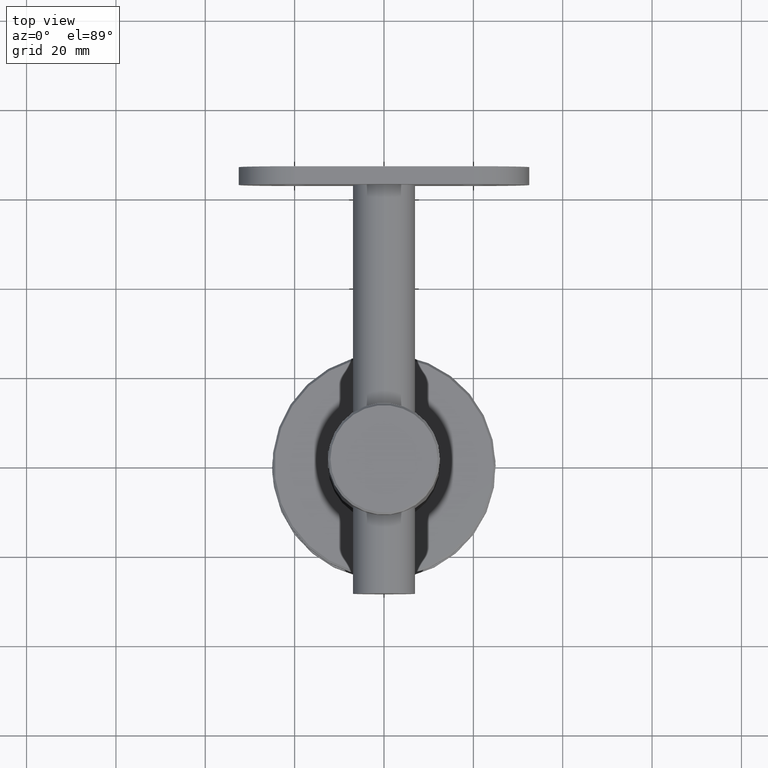
[diagram: clean part render]
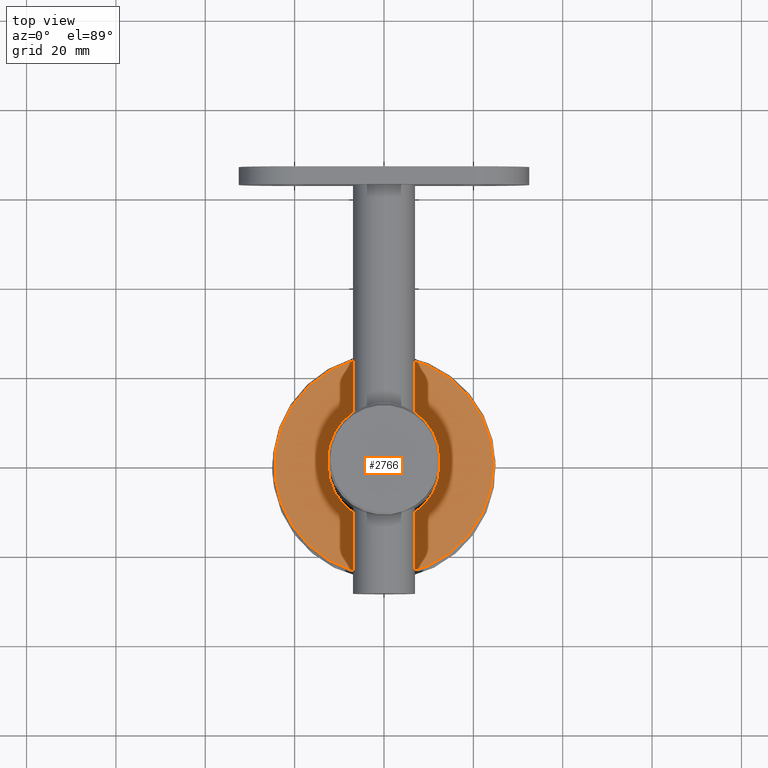
[diagram: same view with one face highlighted and labeled with its STEP entity id]
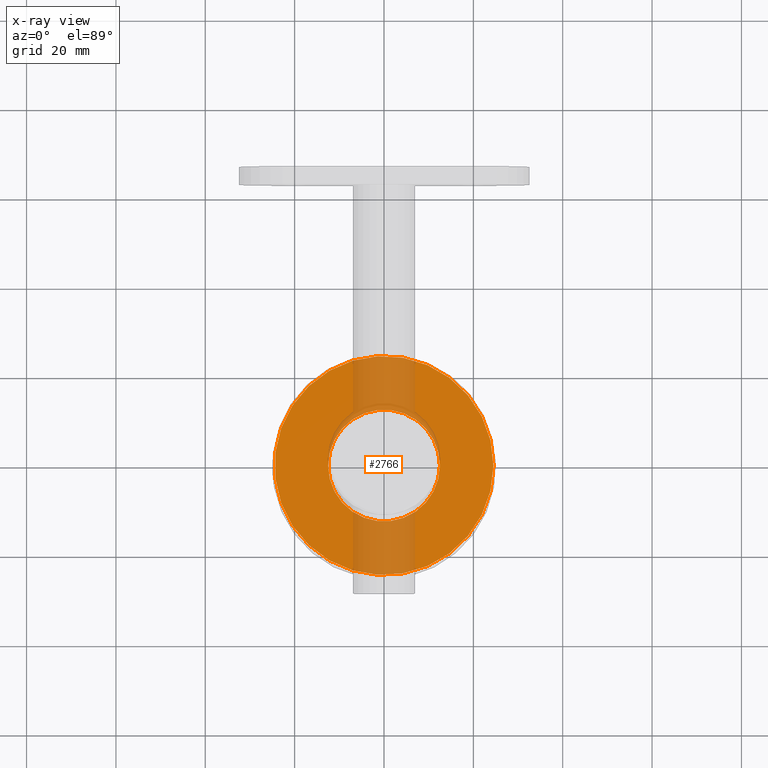
[diagram: x-ray of the same camera — body ghosted, the highlighted face saturated]
A machine part, top view. The second image highlights one B-rep face of the part: STEP entity #2766.
The next image is the same camera in x-ray: the body ghosted, the highlighted face saturated — about 26% of this face is hidden behind the body in this view.
In plain terms, the highlighted planar face has unit normal (0, 0, 1).
Its self-contained STEP definition (entity closure, byte-faithful):
#496 = VERTEX_POINT ( 'NONE', #5854 ) ;
#861 = DIRECTION ( 'NONE',  ( 0.0000000000000000000, 0.0000000000000000000, 1.000000000000000000 ) ) ;
#1377 = FACE_BOUND ( 'NONE', #17075, .T. ) ;
#2627 = DIRECTION ( 'NONE',  ( 1.000000000000000000, 0.0000000000000000000, 0.0000000000000000000 ) ) ;
#2766 = ADVANCED_FACE ( 'NONE', ( #2901, #1377 ), #2903, .T. ) ;
#2901 = FACE_OUTER_BOUND ( 'NONE', #6868, .T. ) ;
#2903 = PLANE ( 'NONE',  #6306 ) ;
#4710 = AXIS2_PLACEMENT_3D ( 'NONE', #5528, #861, #2627 ) ;
#5528 = CARTESIAN_POINT ( 'NONE',  ( 0.0000000000000000000, 0.0000000000000000000, 5.000000000000000000 ) ) ;
#5823 = VERTEX_POINT ( 'NONE', #12201 ) ;
#5854 = CARTESIAN_POINT ( 'NONE',  ( 12.50000000000000000, 0.0000000000000000000, 5.000000000000004400 ) ) ;
#6306 = AXIS2_PLACEMENT_3D ( 'NONE', #20300, #18675, #12586 ) ;
#6495 = DIRECTION ( 'NONE',  ( 0.0000000000000000000, 0.0000000000000000000, 1.000000000000000000 ) ) ;
#6868 = EDGE_LOOP ( 'NONE', ( #6882 ) ) ;
#6882 = ORIENTED_EDGE ( 'NONE', *, *, #8043, .T. ) ;
#8043 = EDGE_CURVE ( 'NONE', #5823, #5823, #15896, .T. ) ;
#11332 = CIRCLE ( 'NONE', #15422, 12.50000000000000000 ) ;
#12201 = CARTESIAN_POINT ( 'NONE',  ( 24.49999999999998200, 0.0000000000000000000, 5.000000000000000000 ) ) ;
#12586 = DIRECTION ( 'NONE',  ( 1.000000000000000000, 0.0000000000000000000, -0.0000000000000000000 ) ) ;
#12758 = ORIENTED_EDGE ( 'NONE', *, *, #17606, .F. ) ;
#15422 = AXIS2_PLACEMENT_3D ( 'NONE', #17535, #6495, #19357 ) ;
#15896 = CIRCLE ( 'NONE', #4710, 24.49999999999998200 ) ;
#17075 = EDGE_LOOP ( 'NONE', ( #12758 ) ) ;
#17535 = CARTESIAN_POINT ( 'NONE',  ( 0.0000000000000000000, 0.0000000000000000000, 5.000000000000004400 ) ) ;
#17606 = EDGE_CURVE ( 'NONE', #496, #496, #11332, .T. ) ;
#18675 = DIRECTION ( 'NONE',  ( 0.0000000000000000000, 0.0000000000000000000, 1.000000000000000000 ) ) ;
#19357 = DIRECTION ( 'NONE',  ( 1.000000000000000000, 0.0000000000000000000, 0.0000000000000000000 ) ) ;
#20300 = CARTESIAN_POINT ( 'NONE',  ( 0.0000000000000000000, 0.0000000000000000000, 5.000000000000000000 ) ) ;